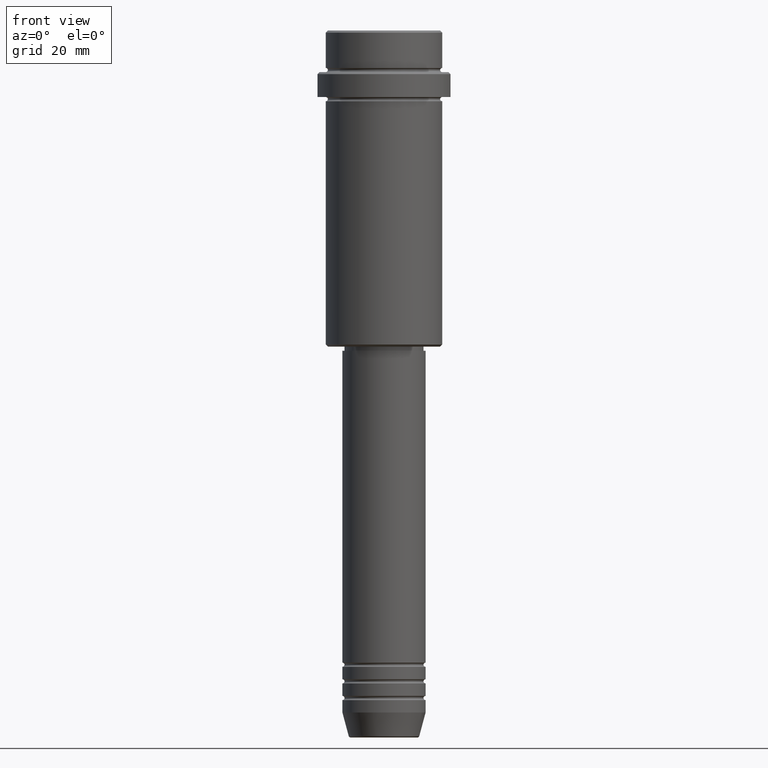
[diagram: clean part render]
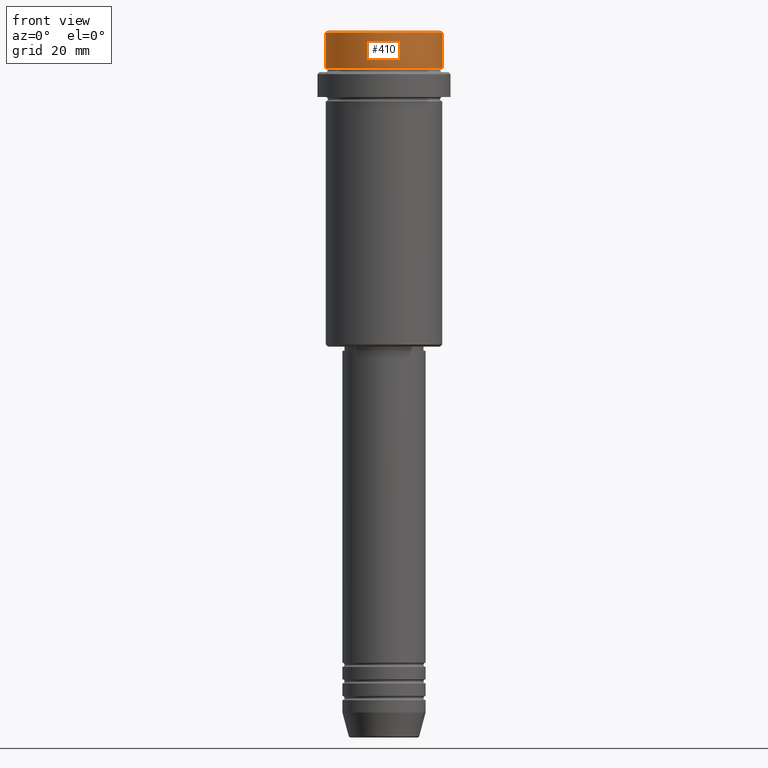
[diagram: same view with one face highlighted and labeled with its STEP entity id]
A machine part, front view. The second image highlights one B-rep face of the part: STEP entity #410.
In plain terms, the highlighted cylindrical surface (partial cylindrical patch) has radius 14 mm, axis along (-0, -0, 1).
Its self-contained STEP definition (entity closure, byte-faithful):
#29 = VERTEX_POINT ( 'NONE', #483 ) ;
#179 = CARTESIAN_POINT ( 'NONE',  ( 0.000000000000000000, 0.000000000000000000, -0.4999999999999987232 ) ) ;
#219 = LINE ( 'NONE', #766, #1035 ) ;
#223 = AXIS2_PLACEMENT_3D ( 'NONE', #402, #1262, #836 ) ;
#233 = ORIENTED_EDGE ( 'NONE', *, *, #400, .T. ) ;
#286 = LINE ( 'NONE', #511, #1157 ) ;
#293 = AXIS2_PLACEMENT_3D ( 'NONE', #179, #613, #1043 ) ;
#305 = DIRECTION ( 'NONE',  ( -0.000000000000000000, -0.000000000000000000, 1.000000000000000000 ) ) ;
#307 = EDGE_CURVE ( 'NONE', #419, #1275, #286, .T. ) ;
#400 = EDGE_CURVE ( 'NONE', #419, #918, #858, .T. ) ;
#402 = CARTESIAN_POINT ( 'NONE',  ( 0.000000000000000000, 0.000000000000000000, 0.000000000000000000 ) ) ;
#407 = AXIS2_PLACEMENT_3D ( 'NONE', #1405, #1316, #784 ) ;
#410 = ADVANCED_FACE ( 'NONE', ( #700 ), #1047, .T. ) ;
#419 = VERTEX_POINT ( 'NONE', #845 ) ;
#483 = CARTESIAN_POINT ( 'NONE',  ( 13.99999999999998934, 0.000000000000000000, -0.4999999999999987232 ) ) ;
#511 = CARTESIAN_POINT ( 'NONE',  ( -13.99999999999998934, 1.714505518806293257E-15, 0.000000000000000000 ) ) ;
#539 = CIRCLE ( 'NONE', #293, 13.99999999999998934 ) ;
#553 = ORIENTED_EDGE ( 'NONE', *, *, #307, .F. ) ;
#613 = DIRECTION ( 'NONE',  ( 0.000000000000000000, 0.000000000000000000, -1.000000000000000000 ) ) ;
#700 = FACE_OUTER_BOUND ( 'NONE', #1064, .T. ) ;
#764 = CARTESIAN_POINT ( 'NONE',  ( -13.99999999999998934, 1.714505518806293257E-15, -0.4999999999999987232 ) ) ;
#766 = CARTESIAN_POINT ( 'NONE',  ( 13.99999999999998934, 0.000000000000000000, 0.000000000000000000 ) ) ;
#784 = DIRECTION ( 'NONE',  ( 1.000000000000000000, 0.000000000000000000, 0.000000000000000000 ) ) ;
#836 = DIRECTION ( 'NONE',  ( 1.000000000000000000, 0.000000000000000000, 0.000000000000000000 ) ) ;
#845 = CARTESIAN_POINT ( 'NONE',  ( -13.99999999999997868, 1.714505518806292666E-15, -8.999999999999998224 ) ) ;
#858 = CIRCLE ( 'NONE', #407, 13.99999999999997868 ) ;
#866 = EDGE_CURVE ( 'NONE', #918, #29, #219, .T. ) ;
#918 = VERTEX_POINT ( 'NONE', #1184 ) ;
#1035 = VECTOR ( 'NONE', #1298, 1000.000000000000000 ) ;
#1043 = DIRECTION ( 'NONE',  ( 1.000000000000000000, 0.000000000000000000, 0.000000000000000000 ) ) ;
#1046 = ORIENTED_EDGE ( 'NONE', *, *, #866, .T. ) ;
#1047 = CYLINDRICAL_SURFACE ( 'NONE', #223, 13.99999999999998934 ) ;
#1064 = EDGE_LOOP ( 'NONE', ( #553, #233, #1046, #1106 ) ) ;
#1106 = ORIENTED_EDGE ( 'NONE', *, *, #1273, .T. ) ;
#1157 = VECTOR ( 'NONE', #305, 1000.000000000000000 ) ;
#1184 = CARTESIAN_POINT ( 'NONE',  ( 13.99999999999997868, 0.000000000000000000, -8.999999999999998224 ) ) ;
#1262 = DIRECTION ( 'NONE',  ( -0.000000000000000000, -0.000000000000000000, 1.000000000000000000 ) ) ;
#1273 = EDGE_CURVE ( 'NONE', #29, #1275, #539, .T. ) ;
#1275 = VERTEX_POINT ( 'NONE', #764 ) ;
#1298 = DIRECTION ( 'NONE',  ( -0.000000000000000000, -0.000000000000000000, 1.000000000000000000 ) ) ;
#1316 = DIRECTION ( 'NONE',  ( -0.000000000000000000, -0.000000000000000000, 1.000000000000000000 ) ) ;
#1405 = CARTESIAN_POINT ( 'NONE',  ( 0.000000000000000000, 0.000000000000000000, -8.999999999999998224 ) ) ;